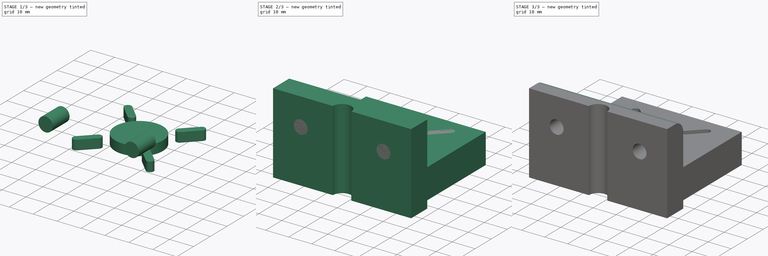
[diagram: build sequence overview — one tinted view per stage of 3, left to right]
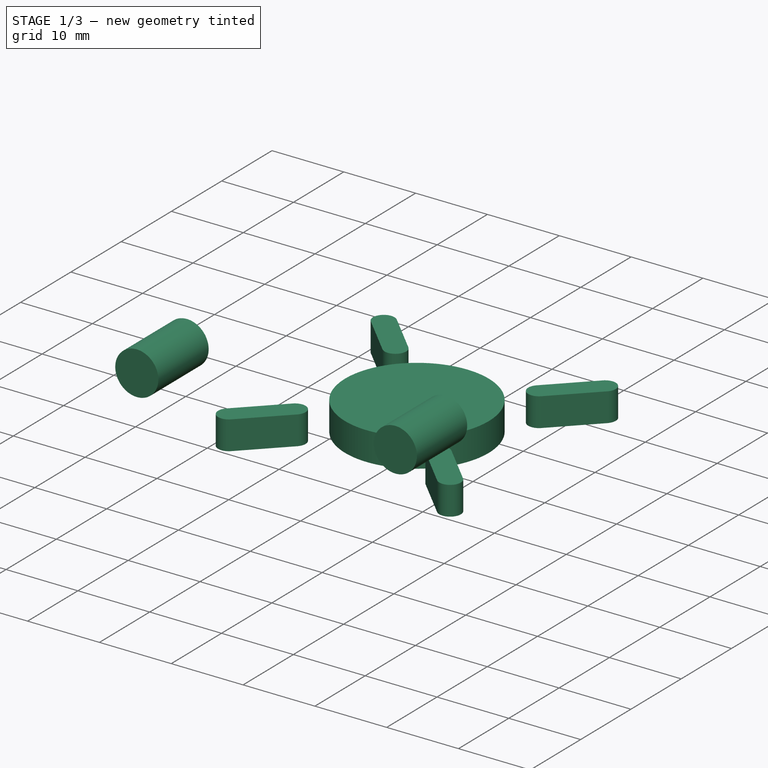
[diagram: stage 1 of 3 — iso view after this stage's code; geometry added in this stage tinted green]
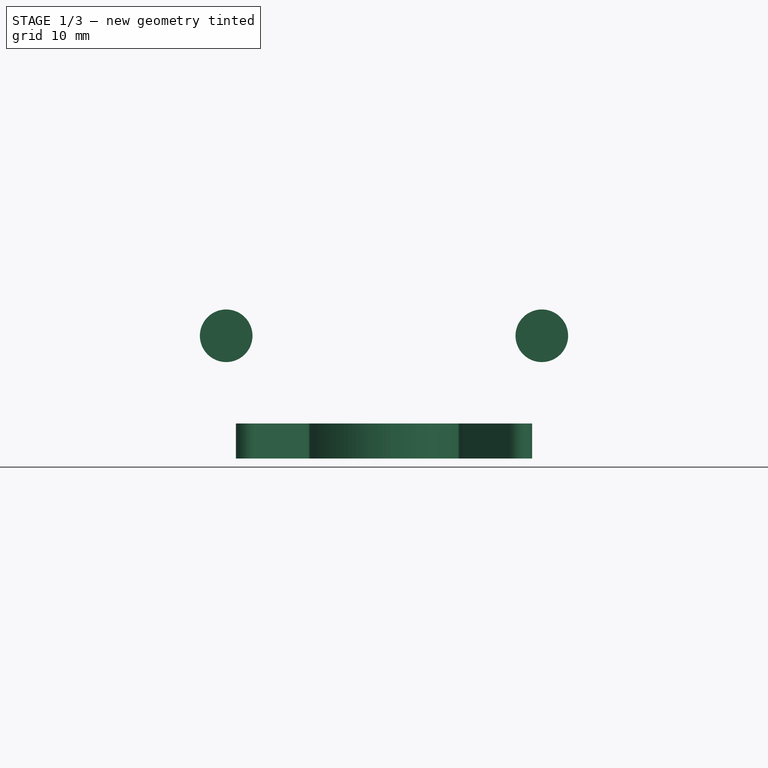
[diagram: stage 1 of 3 — front view after this stage's code; geometry added in this stage tinted green]
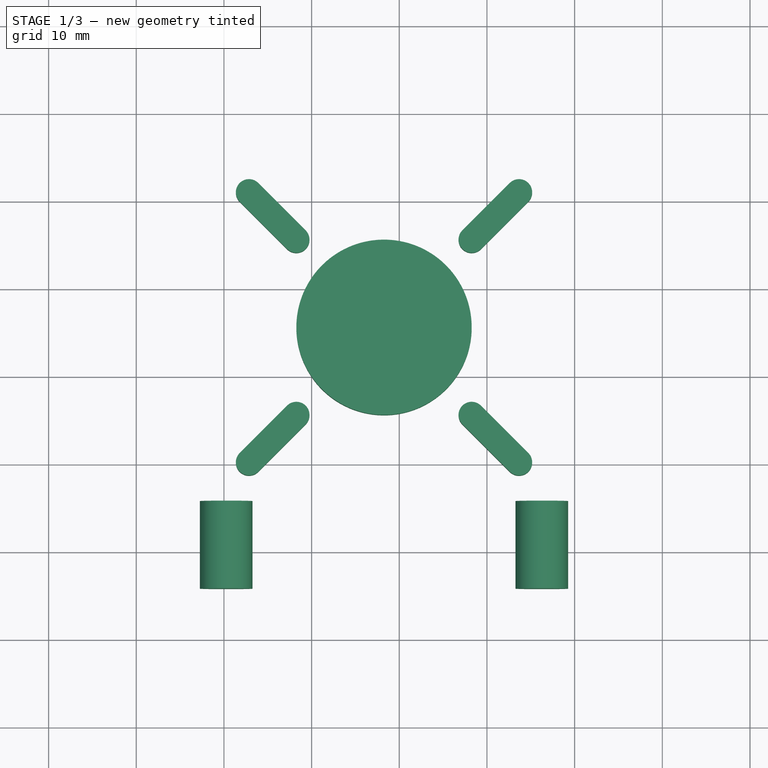
[diagram: stage 1 of 3 — top view after this stage's code; geometry added in this stage tinted green]
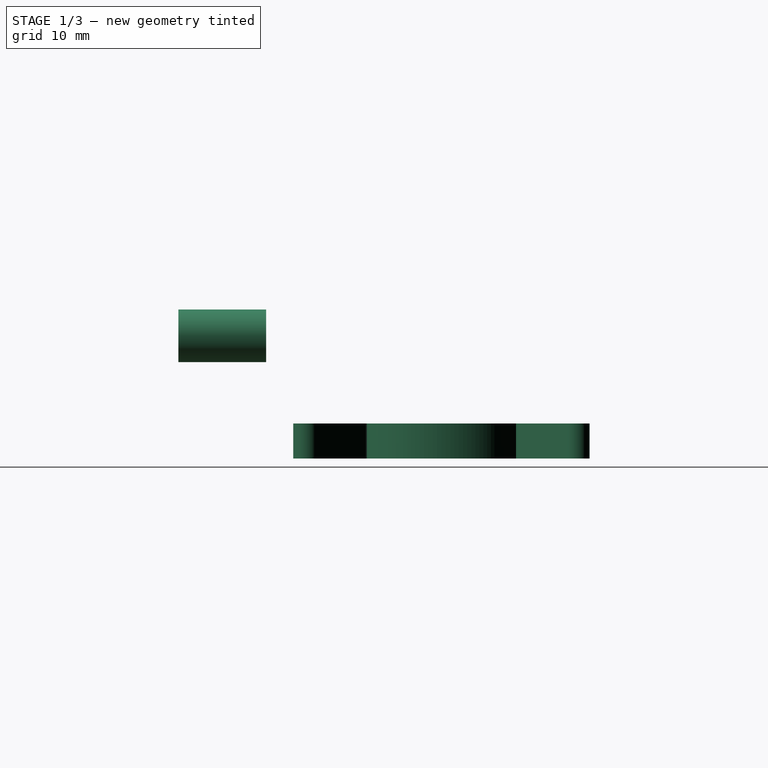
[diagram: stage 1 of 3 — right view after this stage's code; geometry added in this stage tinted green]
FCSTD DOCUMENT  (FreeCAD 0.16R6707 (Git))
Label: Z-Axis_AxisMount
License: All rights reserved
LicenseURL: http://en.wikipedia.org/wiki/All_rights_reserved
objects: Sketcher::SketchObject×4, PartDesign::Pad×4, Part::MultiFuse×2, Part::Cut×1, PartDesign::Fillet×1
note: 16 computed .brp shape members not serialized (recipe doc carries the construction recipe); baked Part::Feature solids carry a one-line shape summary decoded from their .brp

FEATURE [PartDesign::Pad] Pad002  label="FrameMount"
  Length = 10
  Length2 = 100
  Placement = pos=(0,5.63276,0) rot=(0,0.707107,0.707107;3.14159rad)
  Reversed = true
  Sketch = -> Sketch001
  Type = 0
FEATURE [PartDesign::Pad] Pad003  label="MotorMount"
  Length = 4
  Length2 = 100
  Placement = pos=(0,0,13) rot=(0,0,1;0rad)
  Reversed = true
  Sketch = -> Sketch003
  Type = 0
FEATURE [Part::MultiFuse] Fusion001  label="CutBlock"
  Shapes = -> [Pad002,Pad003]
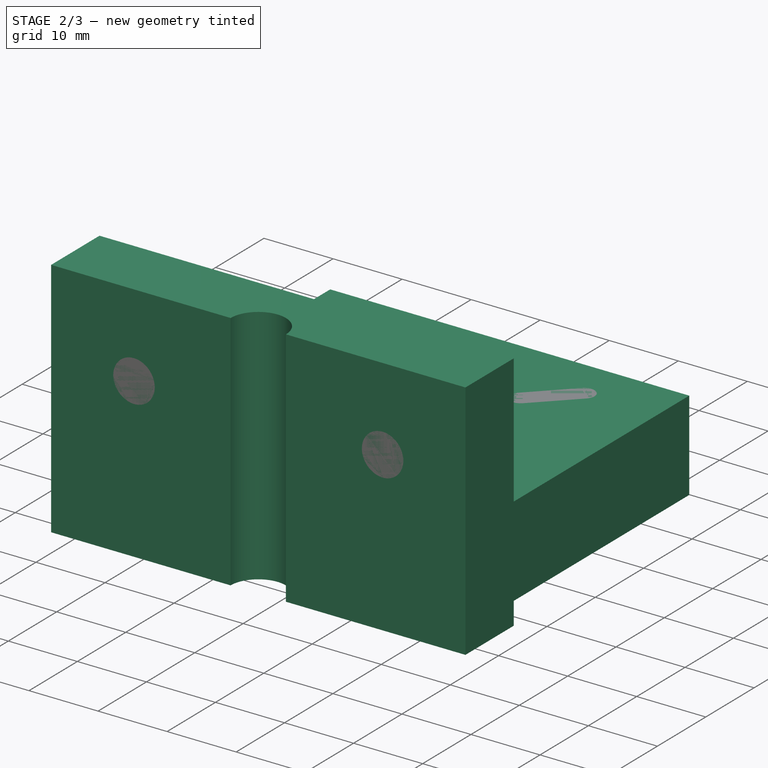
[diagram: stage 2 of 3 — iso view after this stage's code; geometry added in this stage tinted green]
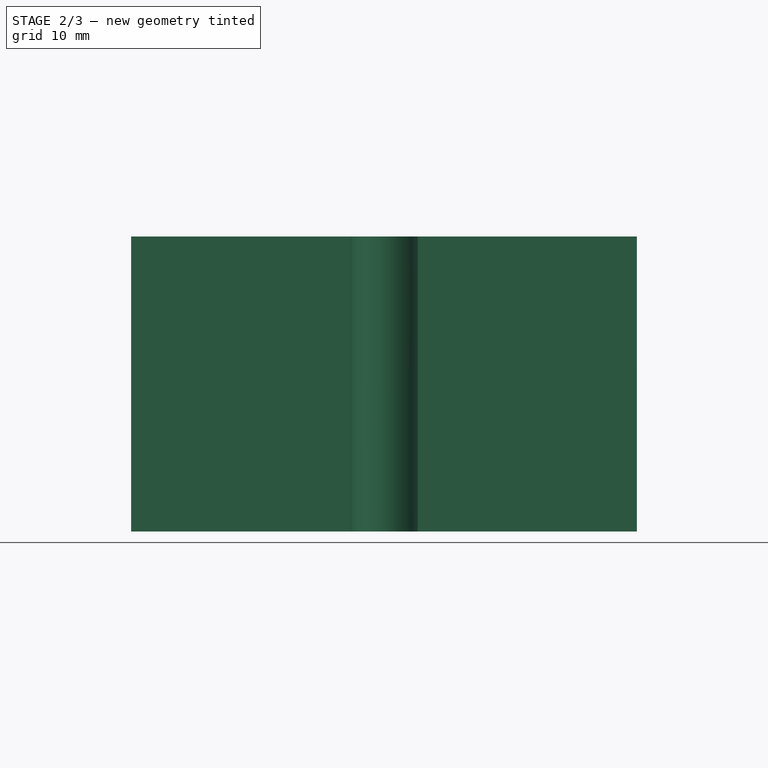
[diagram: stage 2 of 3 — front view after this stage's code; geometry added in this stage tinted green]
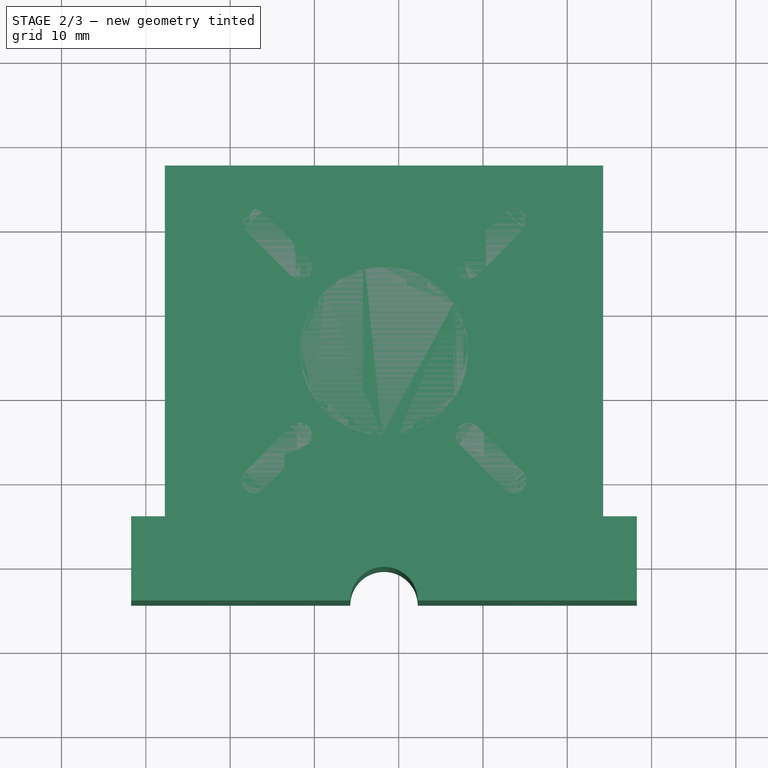
[diagram: stage 2 of 3 — top view after this stage's code; geometry added in this stage tinted green]
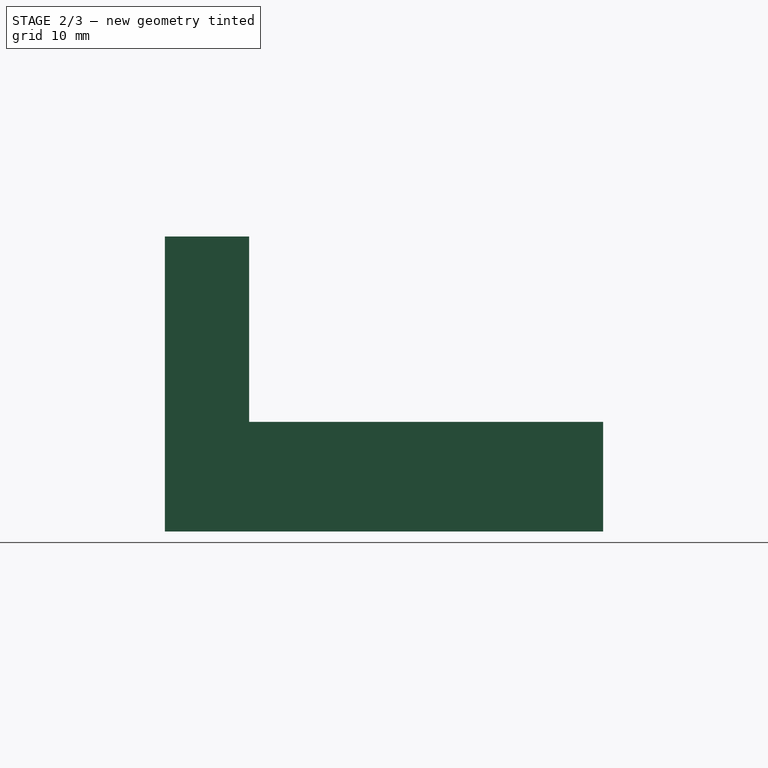
[diagram: stage 2 of 3 — right view after this stage's code; geometry added in this stage tinted green]
FEATURE [Sketcher::SketchObject] Sketch
  sketch-geometry (6):
    g0: LineSegment StartX=-31.743 StartY=5.63276 StartZ=0 EndX=28.257 EndY=5.63276 EndZ=0
    g1: LineSegment StartX=28.257 StartY=5.63276 StartZ=0 EndX=28.257 EndY=-4.36724 EndZ=0
    g2: LineSegment StartX=-31.743 StartY=-4.36724 StartZ=0 EndX=-31.743 EndY=5.63276 EndZ=0
    g3: ArcOfCircle CenterX=-1.74304 CenterY=-4.36724 CenterZ=0 NormalX=0 NormalY=0 NormalZ=1 Radius=4 StartAngle=0 EndAngle=3.14159
    g4: LineSegment StartX=-31.743 StartY=-4.36724 StartZ=0 EndX=-5.74304 EndY=-4.36724 EndZ=0
    g5: LineSegment StartX=2.25696 StartY=-4.36724 StartZ=0 EndX=28.257 EndY=-4.36724 EndZ=0
  constraints (17):
    c: Coincident(g0,g1)
    c: Coincident(g2,g0)
    c: Horizontal(g0)
    c: Vertical(g1)
    c: Vertical(g2)
    c: DistanceY(g1) = -10
    c: DistanceX(g0) = 60
    c: Horizontal(g5)
    c: Horizontal(g4)
    c: Coincident(g4,g2)
    c: Coincident(g4,g3)
    c: Coincident(g3,g5)
    c: Coincident(g5,g1)
    c: Symmetric(g3,g3,g3)
    c: Equal(g4,g5)
    c: Radius(g3) = 4
    c: DistanceY(g3,g3) = 0
FEATURE [Sketcher::SketchObject] Sketch001
  Placement = pos=(0,5.63276,0) rot=(0,0.707107,0.707107;3.14159rad)
  sketch-geometry (2):
    g0: Circle CenterX=-16.257 CenterY=23 CenterZ=0 NormalX=0 NormalY=0 NormalZ=1 Radius=3
    g1: Circle CenterX=19.743 CenterY=23 CenterZ=0 NormalX=0 NormalY=0 NormalZ=1 Radius=3
  constraints (4):
    c: DistanceY(g1,g0) = 0
    c: Radius(g1) = 3
    c: Equal(g1,g0)
    c: DistanceX(g0,g1) = 36
FEATURE [Sketcher::SketchObject] Sketch002
  Placement = pos=(0,5.63276,0) rot=(0,0.707107,0.707107;3.14159rad)
  sketch-geometry (8):
    g0: LineSegment StartX=-24.257 StartY=13 StartZ=0 EndX=27.743 EndY=13 EndZ=0
    g1: LineSegment StartX=27.743 StartY=13 StartZ=0 EndX=27.743 EndY=0 EndZ=0
    g2: LineSegment StartX=-24.257 StartY=0 StartZ=0 EndX=-24.257 EndY=13 EndZ=0
    g3: LineSegment StartX=-24.257 StartY=0 StartZ=0 EndX=-19.357 EndY=0 EndZ=0
    g4: LineSegment StartX=-19.357 StartY=0 StartZ=0 EndX=-19.357 EndY=9 EndZ=0
    g5: LineSegment StartX=-19.357 StartY=9 StartZ=0 EndX=22.843 EndY=9 EndZ=0
    g6: LineSegment StartX=22.843 StartY=9 StartZ=0 EndX=22.843 EndY=0 EndZ=0
    g7: LineSegment StartX=22.843 StartY=0 StartZ=0 EndX=27.743 EndY=0 EndZ=0
  constraints (22):
    c: Coincident(g0,g1)
    c: Coincident(g2,g0)
    c: Horizontal(g0)
    c: Vertical(g1)
    c: Vertical(g2)
    c: DistanceX(g0) = 52
    c: Coincident(g3,g4)
    c: Coincident(g4,g5)
    c: Horizontal(g5)
    c: Coincident(g5,g6)
    c: Coincident(g6,g7)
    c: DistanceY(g5,g0) = 4
    c: Coincident(g1,g7)
    c: Vertical(g6)
    c: Horizontal(g7)
    c: Vertical(g4)
    c: Horizontal(g3)
    c: Coincident(g2,g3)
    c: DistanceX(g5) = 42.2
    c: Equal(g3,g7)
    c: Equal(g6,g4)
    c: DistanceY(g2) = 13
FEATURE [Sketcher::SketchObject] Sketch003
  Placement = pos=(0,0,13) rot=(0,0,1;0rad)
  sketch-geometry (17):
    g0: Circle CenterX=-1.74304 CenterY=25.6328 CenterZ=0 NormalX=0 NormalY=0 NormalZ=1 Radius=10
    g1: ArcOfCircle CenterX=13.657 CenterY=41.0328 CenterZ=0 NormalX=0 NormalY=0 NormalZ=1 Radius=1.5 StartAngle=5.49779 EndAngle=8.63938
    g2: ArcOfCircle CenterX=13.657 CenterY=10.2328 CenterZ=0 NormalX=0 NormalY=0 NormalZ=1 Radius=1.5 StartAngle=3.927 EndAngle=7.06858
    g3: ArcOfCircle CenterX=-17.143 CenterY=41.0328 CenterZ=0 NormalX=0 NormalY=0 NormalZ=1 Radius=1.5 StartAngle=0.785405 EndAngle=3.927
    g4: ArcOfCircle CenterX=-17.143 CenterY=10.2328 CenterZ=0 NormalX=0 NormalY=0 NormalZ=1 Radius=1.5 StartAngle=2.35619 EndAngle=5.49778
    g5: ArcOfCircle CenterX=-11.743 CenterY=15.6328 CenterZ=0 NormalX=0 NormalY=0 NormalZ=1 Radius=1.5 StartAngle=5.49778 EndAngle=8.63937
    g6: LineSegment StartX=-18.2037 StartY=11.2934 StartZ=0 EndX=-12.8037 EndY=16.6934 EndZ=0
    g7: LineSegment StartX=-16.0824 StartY=9.17209 StartZ=0 EndX=-10.6824 EndY=14.5721 EndZ=0
    g8: ArcOfCircle CenterX=8.25696 CenterY=15.6328 CenterZ=0 NormalX=0 NormalY=0 NormalZ=1 Radius=1.5 StartAngle=0.785392 EndAngle=3.927
    g9: LineSegment StartX=7.19631 StartY=14.5721 StartZ=0 EndX=12.5963 EndY=9.17209 EndZ=0
    g10: LineSegment StartX=9.31763 StartY=16.6934 StartZ=0 EndX=14.7176 EndY=11.2934 EndZ=0
    g11: ArcOfCircle CenterX=8.25696 CenterY=35.6328 CenterZ=0 NormalX=0 NormalY=0 NormalZ=1 Radius=1.5 StartAngle=2.35619 EndAngle=5.49779
    g12: ArcOfCircle CenterX=-11.743 CenterY=35.6328 CenterZ=0 NormalX=0 NormalY=0 NormalZ=1 Radius=1.5 StartAngle=3.927 EndAngle=7.06859
    g13: LineSegment StartX=9.31763 StartY=34.5721 StartZ=0 EndX=14.7176 EndY=39.9721 EndZ=0
    g14: LineSegment StartX=7.19631 StartY=36.6934 StartZ=0 EndX=12.5963 EndY=42.0934 EndZ=0
    g15: LineSegment StartX=-10.6824 StartY=36.6934 StartZ=0 EndX=-16.0824 EndY=42.0934 EndZ=0
    g16: LineSegment StartX=-12.8037 StartY=34.5721 StartZ=0 EndX=-18.2037 EndY=39.9721 EndZ=0
  constraints (57):
    c: Radius(g0) = 10
    c: DistanceX(g1,g0) = -15.4
    c: DistanceX(g1,g2) = 0
    c: DistanceY(g1,g2) = -30.8
    c: DistanceX(g4,g3) = 0
    c: DistanceY(g3,g4) = -30.8
    c: Radius(g4) = 1.5
    c: Equal(g4,g3)
    c: Equal(g4,g1)
    c: Equal(g4,g2)
    c: DistanceY(g3,g1) = 0
    c: DistanceX(g3,g1) = 30.8
    c: DistanceY(g1,g0) = -15.4
    c: Coincident(g7,g5)
    c: Coincident(g6,g5)
    c: Coincident(g6,g4)
    c: Coincident(g7,g4)
    c: Tangent(g7,g5)
    c: Tangent(g7,g4)
    c: Tangent(g6,g4)
    c: Tangent(g6,g5)
    c: Equal(g5,g4)
    c: Coincident(g10,g2)
    c: Coincident(g10,g8)
    c: Coincident(g8,g9)
    c: Coincident(g9,g2)
    c: Equal(g2,g8)
    c: Tangent(g9,g8)
    c: Tangent(g10,g8)
    c: Tangent(g10,g2)
    c: Tangent(g9,g2)
    c: DistanceY(g8,g5) = 0
    c: Equal(g12,g3)
    c: Equal(g3,g11)
    c: DistanceY(g11,g8) = -20
    c: DistanceX(g8,g11) = 0
    c: Coincident(g13,g1)
    c: Tangent(g13,g1)
    c: Coincident(g11,g13)
    c: Tangent(g13,g11)
    c: Coincident(g14,g11)
    c: Tangent(g11,g14)
    c: Coincident(g14,g1)
    c: Tangent(g14,g1)
    c: DistanceY(g12,g11) = 0
    c: Coincident(g16,g3)
    c: Coincident(g16,g12)
    c: Tangent(g12,g16)
    c: Tangent(g3,g16)
    c: Coincident(g3,g15)
    c: Tangent(g15,g3)
    c: Coincident(g15,g12)
    c: Tangent(g12,g15)
    c: DistanceX(g12,g11) = 20
    c: Perpendicular(g7,g9)
    c: Perpendicular(g14,g15)
    c: Perpendicular(g13,g10)
FEATURE [PartDesign::Pad] Pad  label="MotorBase"
  Length = 42
  Length2 = 100
  Placement = pos=(0,5.63276,0) rot=(0,0.707107,0.707107;3.14159rad)
  Sketch = -> Sketch002
  Type = 0
FEATURE [PartDesign::Pad] Pad001  label="Base"
  Length = 35
  Length2 = 100
  Sketch = -> Sketch
  Type = 0
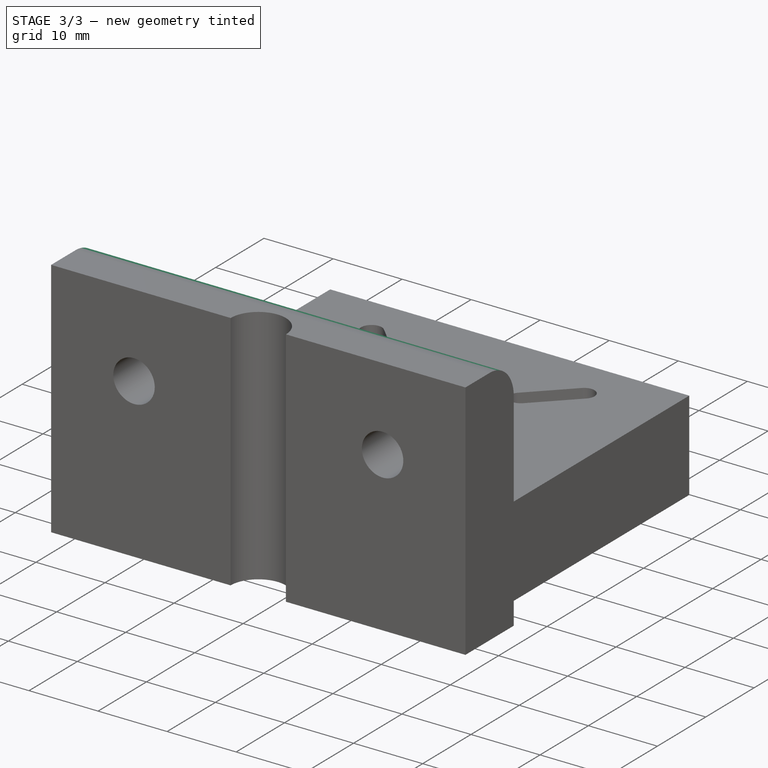
[diagram: stage 3 of 3 — iso view after this stage's code; geometry added in this stage tinted green]
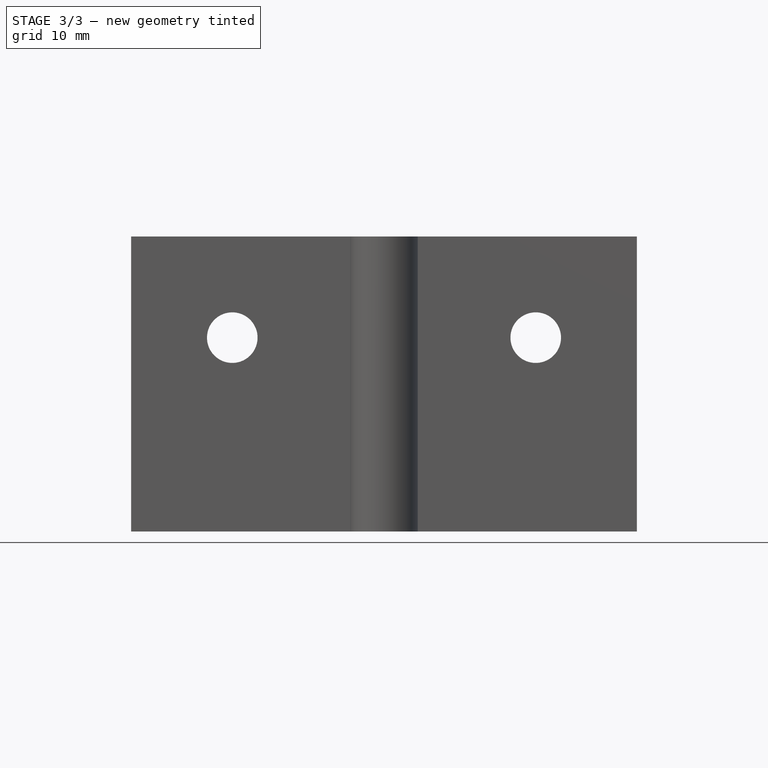
[diagram: stage 3 of 3 — front view after this stage's code; geometry added in this stage tinted green]
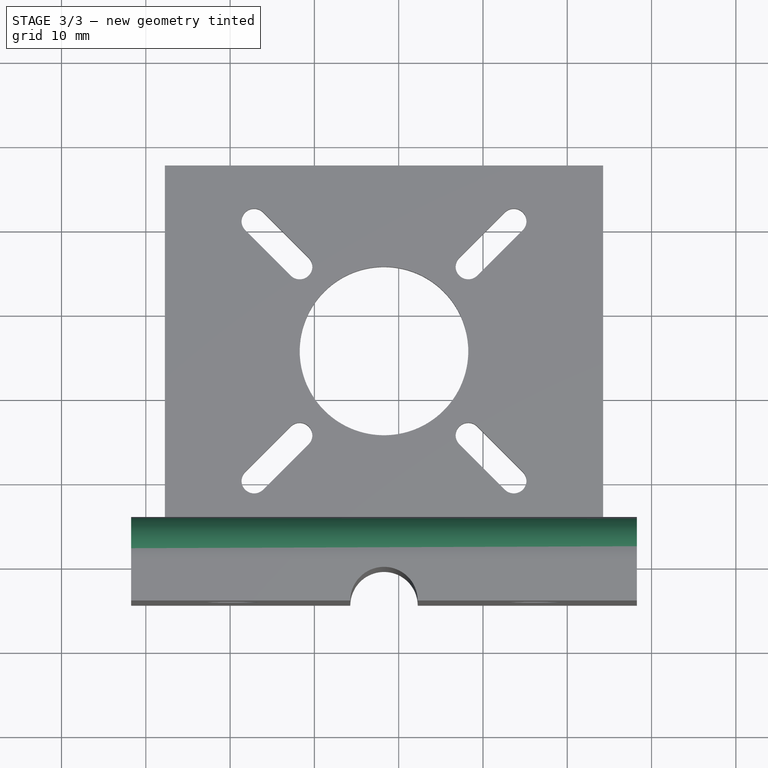
[diagram: stage 3 of 3 — top view after this stage's code; geometry added in this stage tinted green]
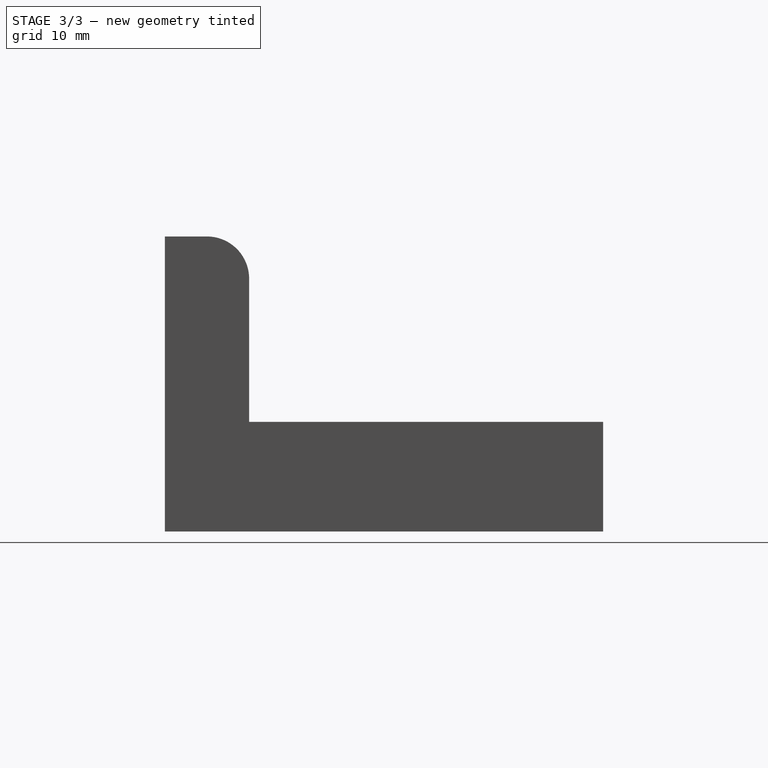
[diagram: stage 3 of 3 — right view after this stage's code; geometry added in this stage tinted green]
FEATURE [Part::MultiFuse] Fusion  label="BaseBlock"
  Shapes = -> [Pad,Pad001]
FEATURE [Part::Cut] Cut  label="Part"
  Base = -> Fusion
  Tool = -> Fusion001
FEATURE [PartDesign::Fillet] Fillet
  Base = -> Cut [Edge61]
  Radius = 5
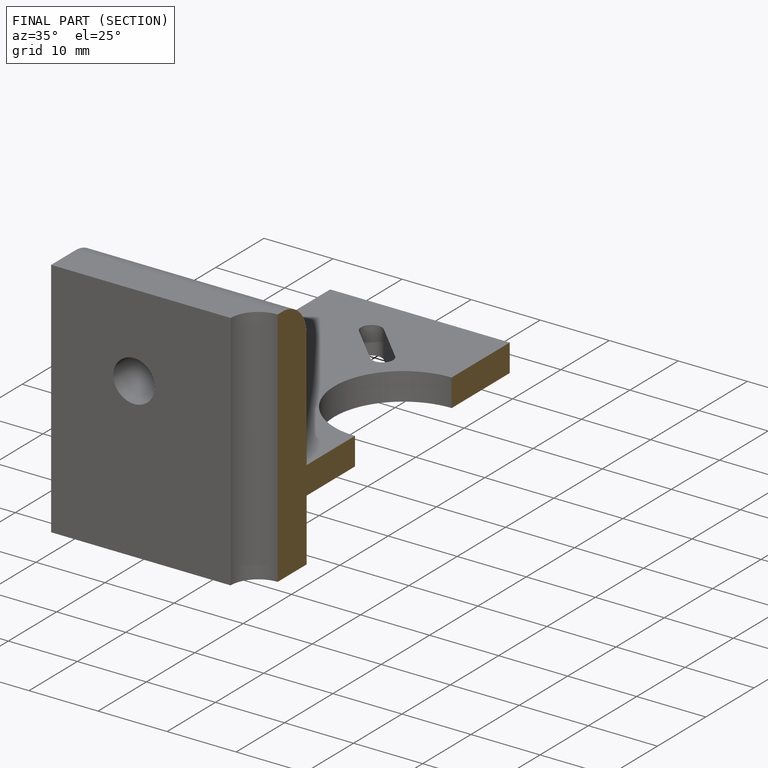
[diagram: finished part — half-section view (interior)]
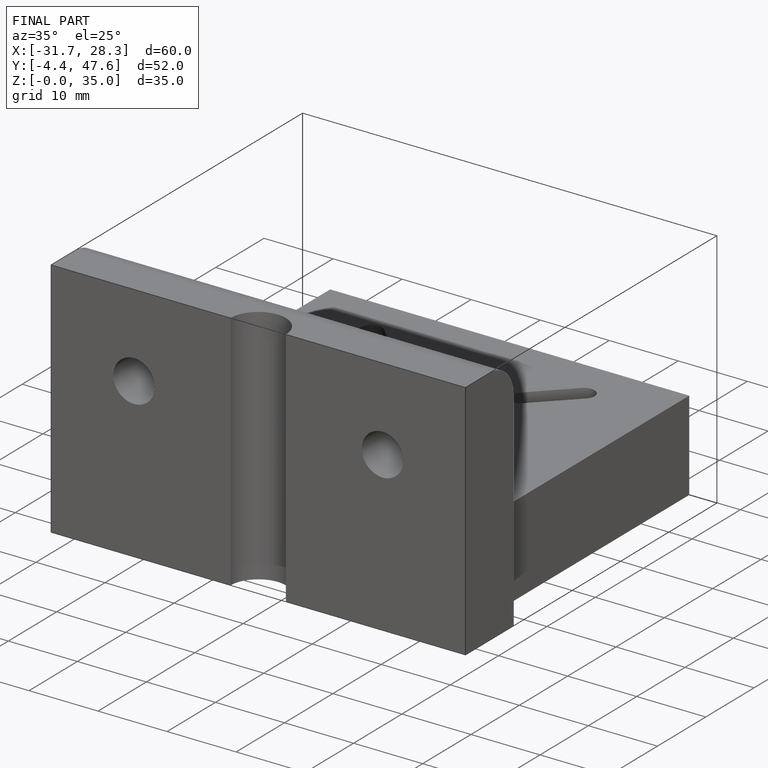
[diagram: finished part — iso view with bounding-box wireframe]
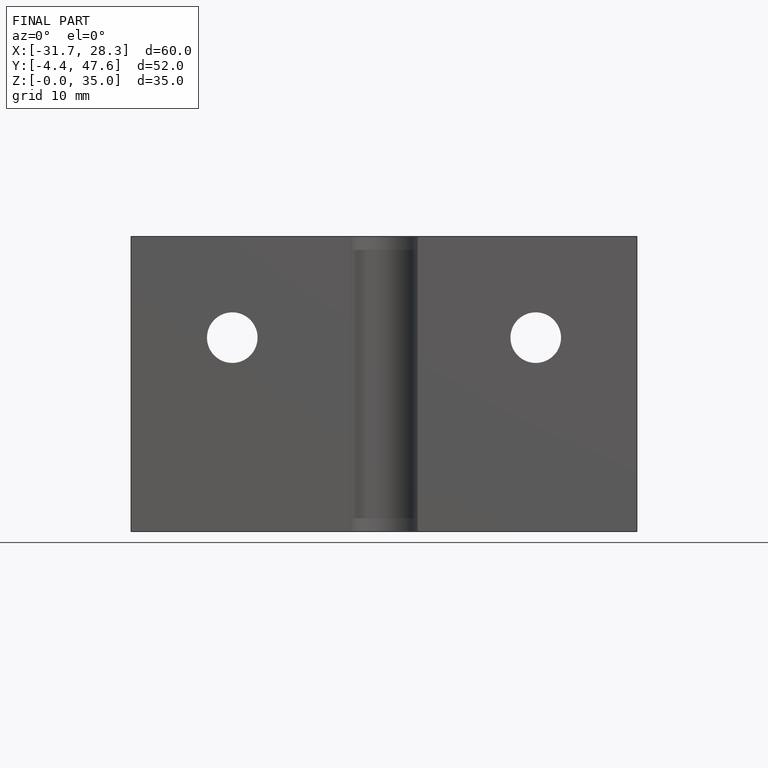
[diagram: finished part — front view with bounding-box wireframe]
